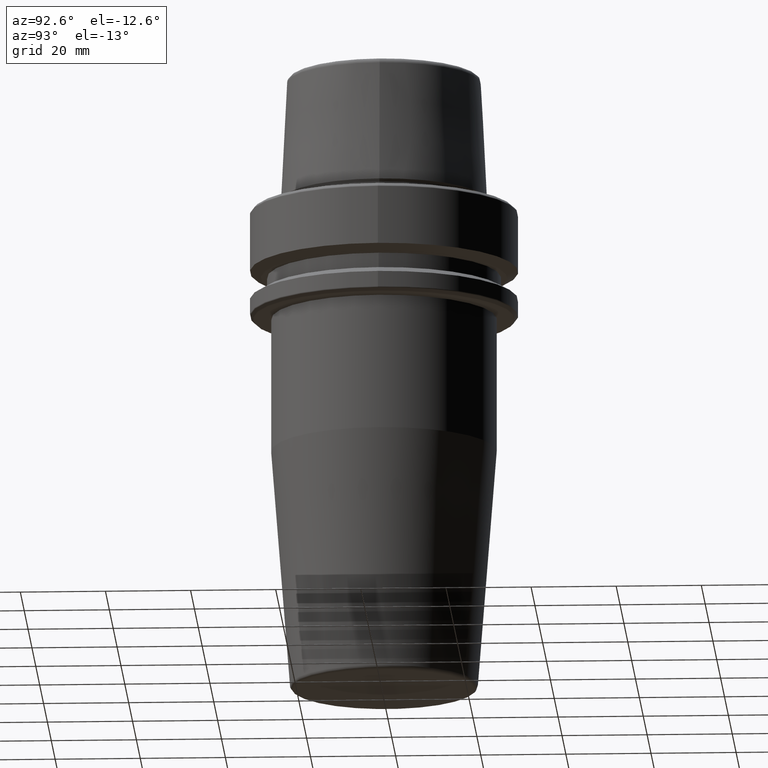
[diagram: clean part render]
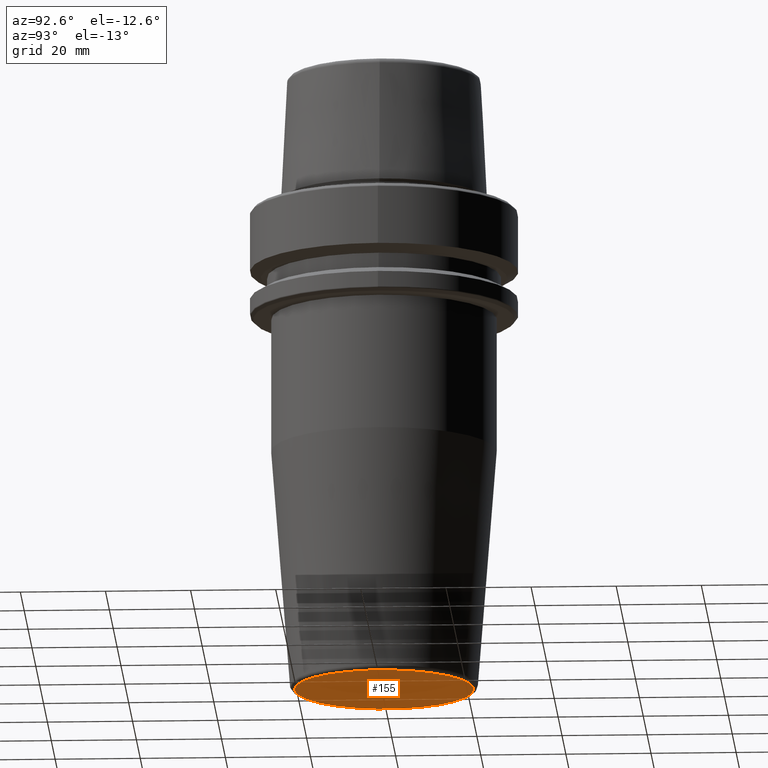
[diagram: same view with one face highlighted and labeled with its STEP entity id]
A machine part, auxiliary view. The second image highlights one B-rep face of the part: STEP entity #155.
In plain terms, the highlighted planar face has unit normal (0, 0, 1).
Its self-contained STEP definition (entity closure, byte-faithful):
#108 = DIRECTION ( 'NONE',  ( 0.0000000000000000000, 1.000000000000000000, 0.0000000000000000000 ) ) ;
#155 = ADVANCED_FACE ( 'NONE', ( #778 ), #965, .F. ) ;
#166 = EDGE_LOOP ( 'NONE', ( #1031, #292 ) ) ;
#259 = DIRECTION ( 'NONE',  ( -0.0000000000000000000, -6.192034377711337400E-017, -1.000000000000000000 ) ) ;
#292 = ORIENTED_EDGE ( 'NONE', *, *, #741, .T. ) ;
#372 = AXIS2_PLACEMENT_3D ( 'NONE', #892, #259, #649 ) ;
#421 = AXIS2_PLACEMENT_3D ( 'NONE', #770, #1209, #957 ) ;
#491 = CARTESIAN_POINT ( 'NONE',  ( 2.642061353535569600E-015, -21.07560950834180200, -115.0000000000000000 ) ) ;
#649 = DIRECTION ( 'NONE',  ( 0.0000000000000000000, 1.000000000000000000, 0.0000000000000000000 ) ) ;
#741 = EDGE_CURVE ( 'NONE', #1195, #951, #772, .T. ) ;
#770 = CARTESIAN_POINT ( 'NONE',  ( 0.0000000000000000000, 4.040330252479872700E-032, -115.0000000000000000 ) ) ;
#772 = CIRCLE ( 'NONE', #372, 21.07560950834179500 ) ;
#778 = FACE_OUTER_BOUND ( 'NONE', #166, .T. ) ;
#785 = CARTESIAN_POINT ( 'NONE',  ( 0.0000000000000000000, -5.510910596163089600E-015, -115.0000000000000000 ) ) ;
#888 = DIRECTION ( 'NONE',  ( -0.0000000000000000000, -6.192034377711337400E-017, -1.000000000000000000 ) ) ;
#892 = CARTESIAN_POINT ( 'NONE',  ( 0.0000000000000000000, -5.510910596163089600E-015, -115.0000000000000000 ) ) ;
#951 = VERTEX_POINT ( 'NONE', #1156 ) ;
#957 = DIRECTION ( 'NONE',  ( 0.0000000000000000000, -1.000000000000000000, 6.192034377711337400E-017 ) ) ;
#965 = PLANE ( 'NONE',  #421 ) ;
#1031 = ORIENTED_EDGE ( 'NONE', *, *, #1171, .T. ) ;
#1107 = CIRCLE ( 'NONE', #1148, 21.07560950834179500 ) ;
#1148 = AXIS2_PLACEMENT_3D ( 'NONE', #785, #888, #108 ) ;
#1156 = CARTESIAN_POINT ( 'NONE',  ( 0.0000000000000000000, 21.07560950834178800, -115.0000000000000000 ) ) ;
#1171 = EDGE_CURVE ( 'NONE', #951, #1195, #1107, .T. ) ;
#1195 = VERTEX_POINT ( 'NONE', #491 ) ;
#1209 = DIRECTION ( 'NONE',  ( 0.0000000000000000000, 6.192034377711337400E-017, 1.000000000000000000 ) ) ;